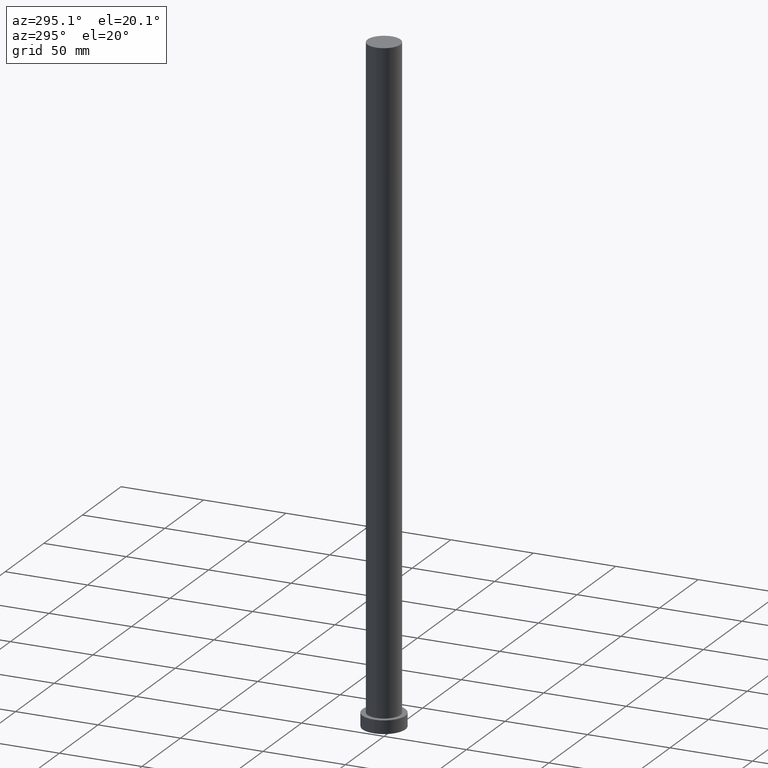
[diagram: clean part render]
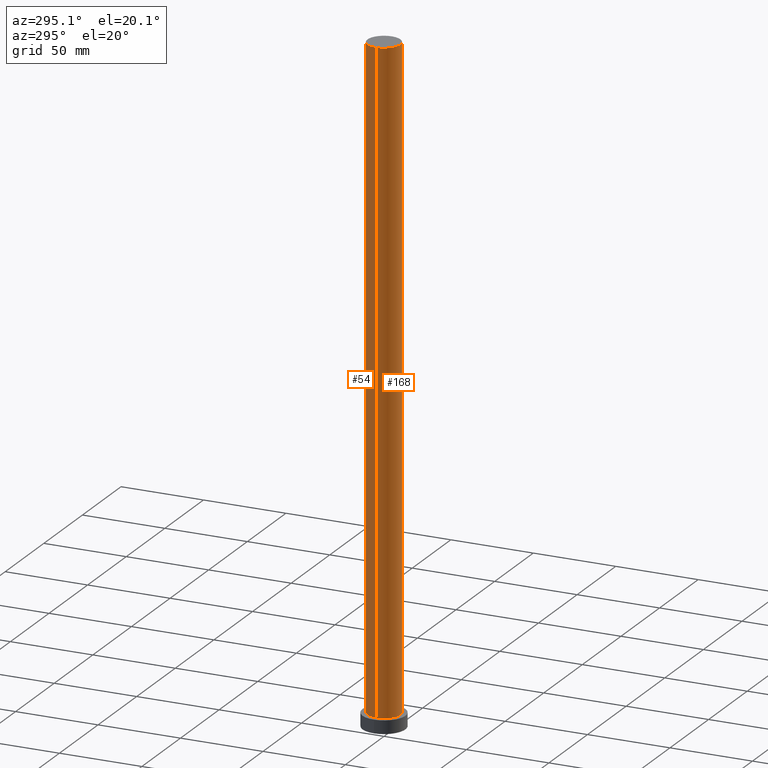
[diagram: same view with one multi-face feature highlighted, each face labeled with its STEP entity id]
A machine part, auxiliary view. The highlighted faces form ONE feature: a constant-radius fillet chain: 2 tangent blend faces with common blend radius 10 mm. The faces share edges in the B-rep.
Their STEP definitions:
[1] entity #54 (Cylinder):
#8 = CARTESIAN_POINT ( 'NONE',  ( 0.000000000000000000, 0.000000000000000000, 8.000000000000000000 ) ) ;
#9 = VERTEX_POINT ( 'NONE', #20 ) ;
#10 = EDGE_LOOP ( 'NONE', ( #210, #79, #226, #31 ) ) ;
#20 = CARTESIAN_POINT ( 'NONE',  ( -10.00000000000000000, 0.000000000000000000, 8.000000000000000000 ) ) ;
#21 = EDGE_CURVE ( 'NONE', #200, #9, #255, .T. ) ;
#24 = CARTESIAN_POINT ( 'NONE',  ( 0.000000000000000000, 0.000000000000000000, 400.0000000000000000 ) ) ;
#31 = ORIENTED_EDGE ( 'NONE', *, *, #21, .F. ) ;
#38 = VERTEX_POINT ( 'NONE', #233 ) ;
#47 = DIRECTION ( 'NONE',  ( -0.000000000000000000, -0.000000000000000000, -1.000000000000000000 ) ) ;
#54 = ADVANCED_FACE ( 'NONE', ( #184 ), #217, .T. ) ;
#70 = AXIS2_PLACEMENT_3D ( 'NONE', #24, #47, #146 ) ;
#79 = ORIENTED_EDGE ( 'NONE', *, *, #160, .T. ) ;
#86 = VECTOR ( 'NONE', #128, 1000.000000000000000 ) ;
#89 = DIRECTION ( 'NONE',  ( 1.000000000000000000, 0.000000000000000000, 0.000000000000000000 ) ) ;
#93 = CARTESIAN_POINT ( 'NONE',  ( -10.00000000000000000, 0.000000000000000000, 400.0000000000000000 ) ) ;
#111 = DIRECTION ( 'NONE',  ( 0.000000000000000000, 0.000000000000000000, 1.000000000000000000 ) ) ;
#116 = AXIS2_PLACEMENT_3D ( 'NONE', #243, #242, #89 ) ;
#123 = VECTOR ( 'NONE', #187, 1000.000000000000000 ) ;
#128 = DIRECTION ( 'NONE',  ( -0.000000000000000000, -0.000000000000000000, -1.000000000000000000 ) ) ;
#129 = CIRCLE ( 'NONE', #116, 10.00000000000000000 ) ;
#134 = VERTEX_POINT ( 'NONE', #205 ) ;
#146 = DIRECTION ( 'NONE',  ( -1.000000000000000000, 0.000000000000000000, 0.000000000000000000 ) ) ;
#151 = AXIS2_PLACEMENT_3D ( 'NONE', #8, #111, #189 ) ;
#153 = LINE ( 'NONE', #192, #86 ) ;
#158 = CIRCLE ( 'NONE', #151, 10.00000000000000000 ) ;
#160 = EDGE_CURVE ( 'NONE', #38, #134, #153, .T. ) ;
#161 = CARTESIAN_POINT ( 'NONE',  ( -10.00000000000000000, 0.000000000000000000, 400.0000000000000000 ) ) ;
#174 = EDGE_CURVE ( 'NONE', #38, #200, #129, .T. ) ;
#184 = FACE_OUTER_BOUND ( 'NONE', #10, .T. ) ;
#187 = DIRECTION ( 'NONE',  ( -0.000000000000000000, -0.000000000000000000, -1.000000000000000000 ) ) ;
#189 = DIRECTION ( 'NONE',  ( 1.000000000000000000, 0.000000000000000000, 0.000000000000000000 ) ) ;
#192 = CARTESIAN_POINT ( 'NONE',  ( 10.00000000000000000, 1.224646799147353256E-15, 400.0000000000000000 ) ) ;
#200 = VERTEX_POINT ( 'NONE', #93 ) ;
#205 = CARTESIAN_POINT ( 'NONE',  ( 10.00000000000000000, 1.224646799147353256E-15, 8.000000000000000000 ) ) ;
#210 = ORIENTED_EDGE ( 'NONE', *, *, #174, .F. ) ;
#217 = CYLINDRICAL_SURFACE ( 'NONE', #70, 10.00000000000000000 ) ;
#221 = EDGE_CURVE ( 'NONE', #134, #9, #158, .T. ) ;
#226 = ORIENTED_EDGE ( 'NONE', *, *, #221, .T. ) ;
#233 = CARTESIAN_POINT ( 'NONE',  ( 10.00000000000000000, 1.224646799147353256E-15, 400.0000000000000000 ) ) ;
#242 = DIRECTION ( 'NONE',  ( 0.000000000000000000, 0.000000000000000000, 1.000000000000000000 ) ) ;
#243 = CARTESIAN_POINT ( 'NONE',  ( 0.000000000000000000, 0.000000000000000000, 400.0000000000000000 ) ) ;
#255 = LINE ( 'NONE', #161, #123 ) ;
[2] entity #168 (Cylinder):
#9 = VERTEX_POINT ( 'NONE', #20 ) ;
#12 = AXIS2_PLACEMENT_3D ( 'NONE', #228, #26, #27 ) ;
#20 = CARTESIAN_POINT ( 'NONE',  ( -10.00000000000000000, 0.000000000000000000, 8.000000000000000000 ) ) ;
#21 = EDGE_CURVE ( 'NONE', #200, #9, #255, .T. ) ;
#26 = DIRECTION ( 'NONE',  ( -0.000000000000000000, -0.000000000000000000, -1.000000000000000000 ) ) ;
#27 = DIRECTION ( 'NONE',  ( -1.000000000000000000, 0.000000000000000000, 0.000000000000000000 ) ) ;
#29 = EDGE_CURVE ( 'NONE', #9, #134, #34, .T. ) ;
#34 = CIRCLE ( 'NONE', #110, 10.00000000000000000 ) ;
#38 = VERTEX_POINT ( 'NONE', #233 ) ;
#44 = CARTESIAN_POINT ( 'NONE',  ( 0.000000000000000000, 0.000000000000000000, 400.0000000000000000 ) ) ;
#45 = CARTESIAN_POINT ( 'NONE',  ( 0.000000000000000000, 0.000000000000000000, 8.000000000000000000 ) ) ;
#48 = FACE_OUTER_BOUND ( 'NONE', #139, .T. ) ;
#53 = DIRECTION ( 'NONE',  ( 1.000000000000000000, 0.000000000000000000, 0.000000000000000000 ) ) ;
#67 = DIRECTION ( 'NONE',  ( 1.000000000000000000, 0.000000000000000000, 0.000000000000000000 ) ) ;
#86 = VECTOR ( 'NONE', #128, 1000.000000000000000 ) ;
#93 = CARTESIAN_POINT ( 'NONE',  ( -10.00000000000000000, 0.000000000000000000, 400.0000000000000000 ) ) ;
#97 = ORIENTED_EDGE ( 'NONE', *, *, #29, .T. ) ;
#106 = CIRCLE ( 'NONE', #241, 10.00000000000000000 ) ;
#110 = AXIS2_PLACEMENT_3D ( 'NONE', #45, #181, #67 ) ;
#123 = VECTOR ( 'NONE', #187, 1000.000000000000000 ) ;
#128 = DIRECTION ( 'NONE',  ( -0.000000000000000000, -0.000000000000000000, -1.000000000000000000 ) ) ;
#131 = EDGE_CURVE ( 'NONE', #200, #38, #106, .T. ) ;
#133 = CYLINDRICAL_SURFACE ( 'NONE', #12, 10.00000000000000000 ) ;
#134 = VERTEX_POINT ( 'NONE', #205 ) ;
#139 = EDGE_LOOP ( 'NONE', ( #175, #247, #251, #97 ) ) ;
#153 = LINE ( 'NONE', #192, #86 ) ;
#160 = EDGE_CURVE ( 'NONE', #38, #134, #153, .T. ) ;
#161 = CARTESIAN_POINT ( 'NONE',  ( -10.00000000000000000, 0.000000000000000000, 400.0000000000000000 ) ) ;
#168 = ADVANCED_FACE ( 'NONE', ( #48 ), #133, .T. ) ;
#175 = ORIENTED_EDGE ( 'NONE', *, *, #160, .F. ) ;
#181 = DIRECTION ( 'NONE',  ( 0.000000000000000000, 0.000000000000000000, 1.000000000000000000 ) ) ;
#187 = DIRECTION ( 'NONE',  ( -0.000000000000000000, -0.000000000000000000, -1.000000000000000000 ) ) ;
#192 = CARTESIAN_POINT ( 'NONE',  ( 10.00000000000000000, 1.224646799147353256E-15, 400.0000000000000000 ) ) ;
#200 = VERTEX_POINT ( 'NONE', #93 ) ;
#204 = DIRECTION ( 'NONE',  ( 0.000000000000000000, 0.000000000000000000, 1.000000000000000000 ) ) ;
#205 = CARTESIAN_POINT ( 'NONE',  ( 10.00000000000000000, 1.224646799147353256E-15, 8.000000000000000000 ) ) ;
#228 = CARTESIAN_POINT ( 'NONE',  ( 0.000000000000000000, 0.000000000000000000, 400.0000000000000000 ) ) ;
#233 = CARTESIAN_POINT ( 'NONE',  ( 10.00000000000000000, 1.224646799147353256E-15, 400.0000000000000000 ) ) ;
#241 = AXIS2_PLACEMENT_3D ( 'NONE', #44, #204, #53 ) ;
#247 = ORIENTED_EDGE ( 'NONE', *, *, #131, .F. ) ;
#251 = ORIENTED_EDGE ( 'NONE', *, *, #21, .T. ) ;
#255 = LINE ( 'NONE', #161, #123 ) ;